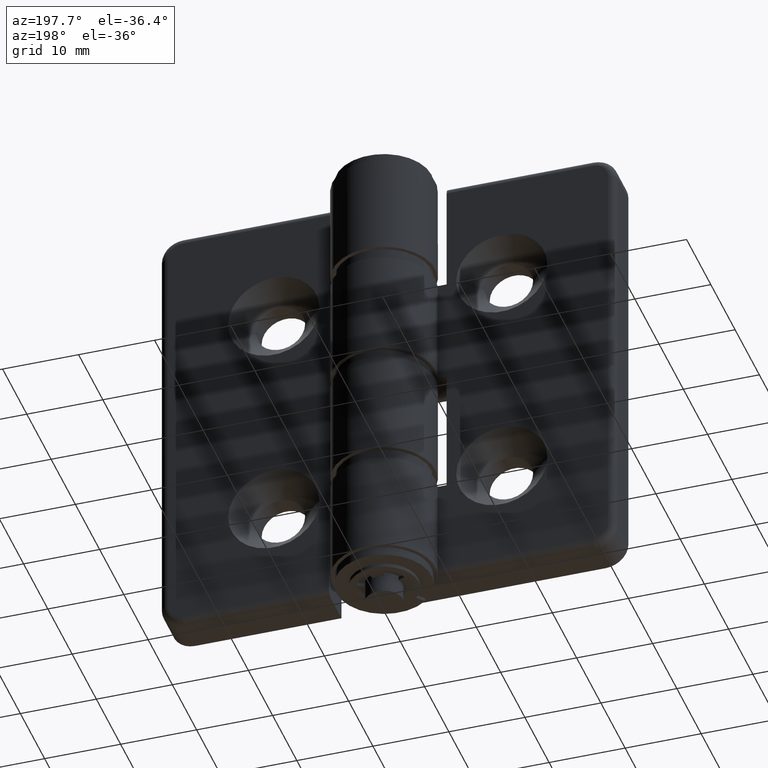
[diagram: clean part render]
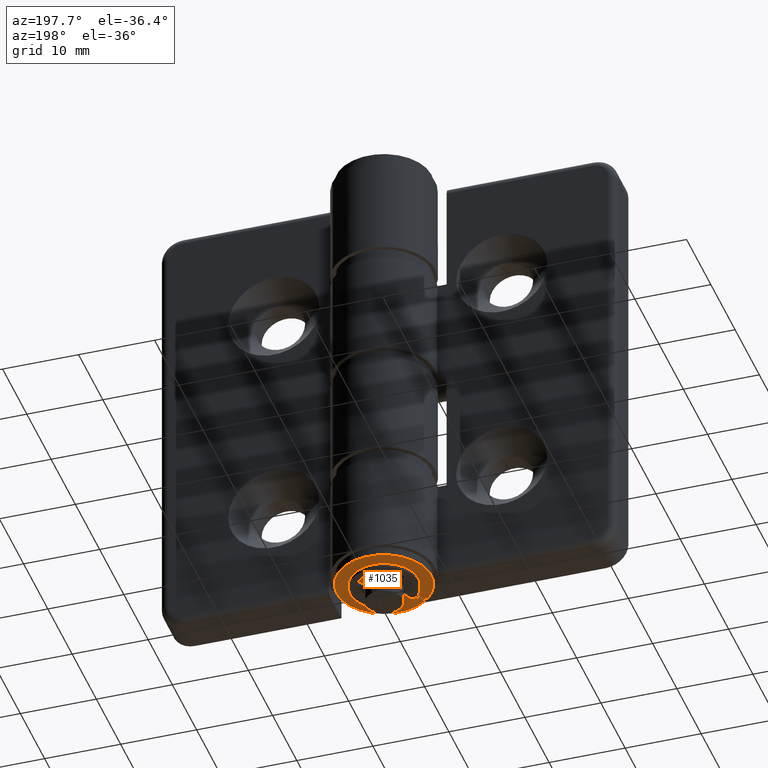
[diagram: same view with one face highlighted and labeled with its STEP entity id]
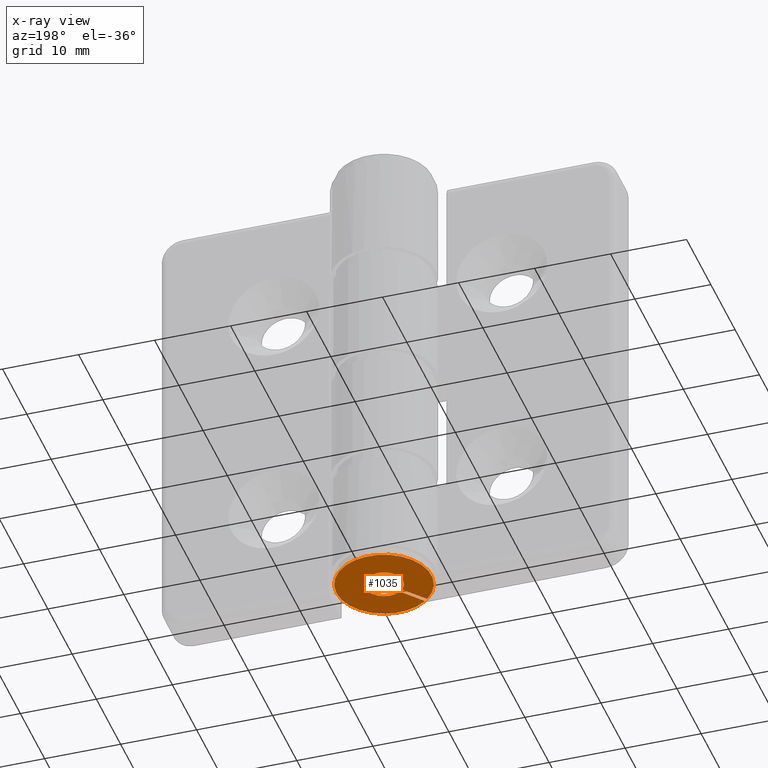
[diagram: x-ray of the same camera — body ghosted, the highlighted face saturated]
A machine part, auxiliary view. The second image highlights one B-rep face of the part: STEP entity #1035.
The next image is the same camera in x-ray: the body ghosted, the highlighted face saturated — about 0% of this face is hidden behind the body in this view.
In plain terms, the highlighted planar face has unit normal (-0, -0, -1).
Its self-contained STEP definition (entity closure, byte-faithful):
#110=PLANE('',#1141);
#160=FACE_OUTER_BOUND('',#239,.T.);
#239=EDGE_LOOP('',(#855,#856,#857,#858));
#293=LINE('',#1704,#366);
#303=LINE('',#1724,#376);
#366=VECTOR('',#1366,3.75752940563185);
#376=VECTOR('',#1378,3.75752940563185);
#441=CIRCLE('',#1136,2.5);
#443=CIRCLE('',#1140,6.25);
#514=VERTEX_POINT('',#1700);
#516=VERTEX_POINT('',#1703);
#521=VERTEX_POINT('',#1714);
#525=VERTEX_POINT('',#1722);
#626=EDGE_CURVE('',#516,#514,#293,.T.);
#636=EDGE_CURVE('',#521,#525,#303,.T.);
#640=EDGE_CURVE('',#516,#525,#441,.T.);
#642=EDGE_CURVE('',#514,#521,#443,.T.);
#855=ORIENTED_EDGE('',*,*,#626,.T.);
#856=ORIENTED_EDGE('',*,*,#642,.T.);
#857=ORIENTED_EDGE('',*,*,#636,.T.);
#858=ORIENTED_EDGE('',*,*,#640,.F.);
#1035=ADVANCED_FACE('',(#160),#110,.T.);
#1136=AXIS2_PLACEMENT_3D('',#1731,#1391,#1392);
#1140=AXIS2_PLACEMENT_3D('',#1735,#1399,#1400);
#1141=AXIS2_PLACEMENT_3D('',#1736,#1401,#1402);
#1366=DIRECTION('',(3.07301901196181E-16,1.72892050448861E-31,-1.));
#1378=DIRECTION('',(-1.78877226069419E-16,-1.00638656231426E-31,1.));
#1391=DIRECTION('center_axis',(5.62613019235721E-16,-1.,0.));
#1392=DIRECTION('ref_axis',(1.,5.62613019235721E-16,0.));
#1399=DIRECTION('center_axis',(5.62613019235721E-16,-1.,0.));
#1400=DIRECTION('ref_axis',(1.,5.62613019235721E-16,0.));
#1401=DIRECTION('center_axis',(5.62613019235721E-16,-1.,0.));
#1402=DIRECTION('ref_axis',(0.,0.,-1.));
#1700=CARTESIAN_POINT('',(0.250000000000002,-1.31838984174237E-15,-6.2449979983984));
#1703=CARTESIAN_POINT('',(0.250000000000001,-1.11022302462516E-15,-2.48746859276655));
#1704=CARTESIAN_POINT('',(0.25,-1.26587929328037E-15,-3.45714638845704E-16));
#1714=CARTESIAN_POINT('',(-0.249999999999998,-1.59594559789866E-15,-6.2449979983984));
#1722=CARTESIAN_POINT('',(-0.249999999999999,-1.11022302462516E-15,-2.48746859276655));
#1724=CARTESIAN_POINT('',(-0.249999999999998,-1.54718580289823E-15,-3.7821592524495));
#1731=CARTESIAN_POINT('Origin',(5.28157799241352E-31,-1.4065325480893E-15,
0.));
#1735=CARTESIAN_POINT('Origin',(1.7151580845421E-30,-3.51633137022326E-15,
0.));
#1736=CARTESIAN_POINT('Origin',(2.5,0.,0.));